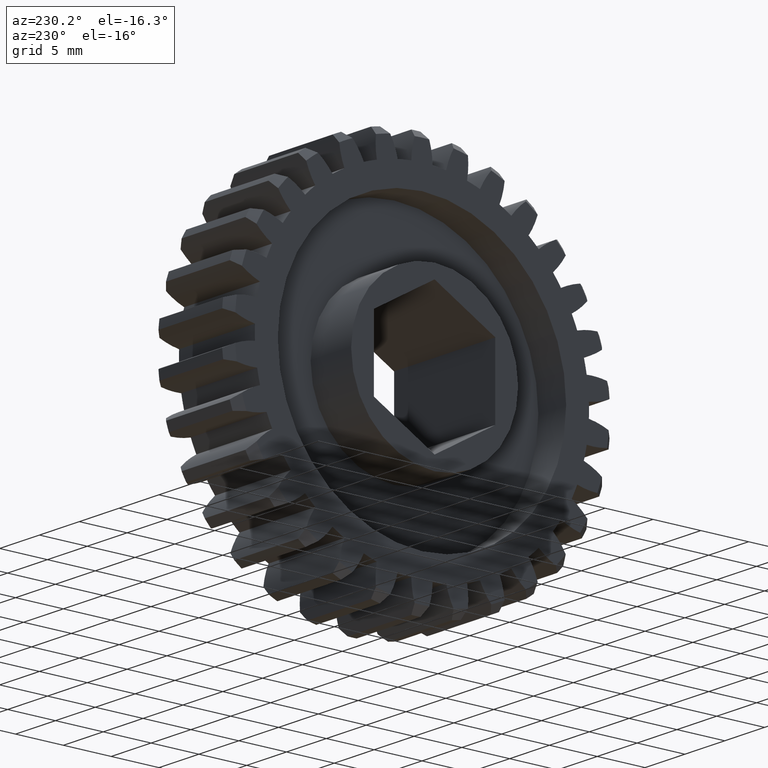
[diagram: clean part render]
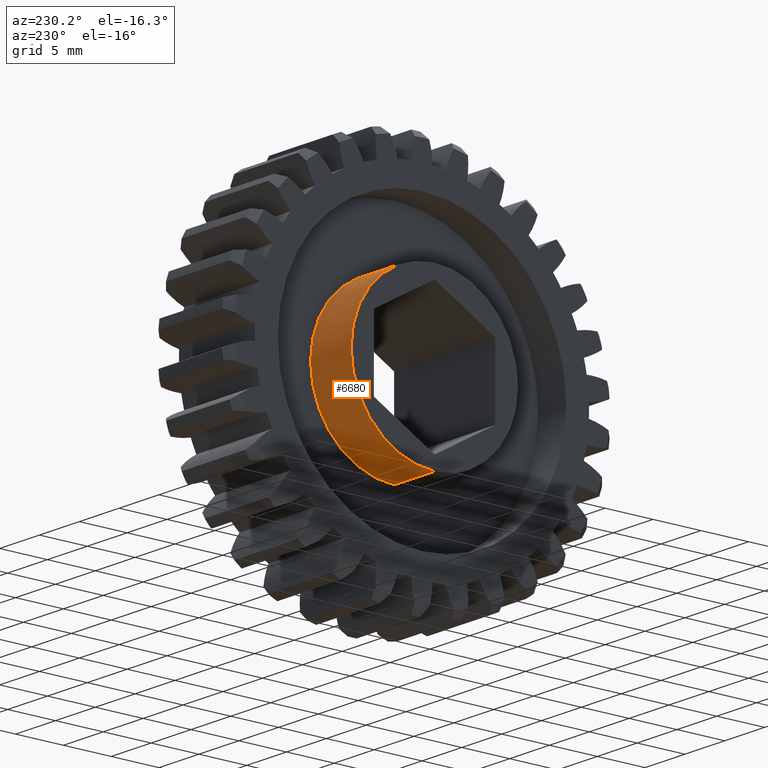
[diagram: same view with one face highlighted and labeled with its STEP entity id]
A machine part, auxiliary view. The second image highlights one B-rep face of the part: STEP entity #6680.
In plain terms, the highlighted cylindrical surface (partial cylindrical patch) has radius 8.7312 mm, axis along (1, 0, 0).
Its self-contained STEP definition (entity closure, byte-faithful):
#324 = CIRCLE ( 'NONE', #2418, 0.3437500000000000000 ) ;
#367 = DIRECTION ( 'NONE',  ( 1.000000000000000000, 0.0000000000000000000, 0.0000000000000000000 ) ) ;
#398 = CARTESIAN_POINT ( 'NONE',  ( -0.06250000000000000000, 0.0000000000000000000, -0.3437500000000000000 ) ) ;
#559 = ORIENTED_EDGE ( 'NONE', *, *, #3916, .F. ) ;
#666 = VERTEX_POINT ( 'NONE', #2538 ) ;
#830 = CARTESIAN_POINT ( 'NONE',  ( 0.1375000000000000111, 4.209723372069026264E-17, 0.3437500000000000000 ) ) ;
#910 = DIRECTION ( 'NONE',  ( 1.000000000000000000, -0.0000000000000000000, 0.0000000000000000000 ) ) ;
#912 = FACE_OUTER_BOUND ( 'NONE', #1091, .T. ) ;
#1091 = EDGE_LOOP ( 'NONE', ( #3772, #3389, #559, #1329 ) ) ;
#1321 = VERTEX_POINT ( 'NONE', #830 ) ;
#1329 = ORIENTED_EDGE ( 'NONE', *, *, #5505, .F. ) ;
#1372 = CARTESIAN_POINT ( 'NONE',  ( -0.06250000000000000000, 4.209723372069026264E-17, 0.3437500000000000000 ) ) ;
#1595 = AXIS2_PLACEMENT_3D ( 'NONE', #5855, #910, #3107 ) ;
#2000 = DIRECTION ( 'NONE',  ( 1.000000000000000000, -0.0000000000000000000, 0.0000000000000000000 ) ) ;
#2418 = AXIS2_PLACEMENT_3D ( 'NONE', #6945, #2000, #4197 ) ;
#2538 = CARTESIAN_POINT ( 'NONE',  ( -0.06250000000000000000, 4.209723372069026264E-17, 0.3437500000000000000 ) ) ;
#2576 = DIRECTION ( 'NONE',  ( 0.0000000000000000000, 0.0000000000000000000, -1.000000000000000000 ) ) ;
#2605 = DIRECTION ( 'NONE',  ( 1.000000000000000000, 0.0000000000000000000, 0.0000000000000000000 ) ) ;
#2613 = EDGE_CURVE ( 'NONE', #3969, #666, #324, .T. ) ;
#3107 = DIRECTION ( 'NONE',  ( 0.0000000000000000000, 0.0000000000000000000, -1.000000000000000000 ) ) ;
#3109 = CYLINDRICAL_SURFACE ( 'NONE', #4221, 0.3437500000000000000 ) ;
#3389 = ORIENTED_EDGE ( 'NONE', *, *, #5815, .T. ) ;
#3408 = VECTOR ( 'NONE', #3581, 39.37007874015748143 ) ;
#3581 = DIRECTION ( 'NONE',  ( 1.000000000000000000, 0.0000000000000000000, 0.0000000000000000000 ) ) ;
#3772 = ORIENTED_EDGE ( 'NONE', *, *, #2613, .T. ) ;
#3916 = EDGE_CURVE ( 'NONE', #7037, #1321, #4703, .T. ) ;
#3969 = VERTEX_POINT ( 'NONE', #5959 ) ;
#4197 = DIRECTION ( 'NONE',  ( 0.0000000000000000000, 0.0000000000000000000, -1.000000000000000000 ) ) ;
#4221 = AXIS2_PLACEMENT_3D ( 'NONE', #5324, #367, #2576 ) ;
#4319 = VECTOR ( 'NONE', #2605, 39.37007874015748143 ) ;
#4703 = CIRCLE ( 'NONE', #1595, 0.3437500000000000000 ) ;
#5324 = CARTESIAN_POINT ( 'NONE',  ( -0.06250000000000000000, 0.0000000000000000000, 0.0000000000000000000 ) ) ;
#5348 = LINE ( 'NONE', #398, #4319 ) ;
#5505 = EDGE_CURVE ( 'NONE', #3969, #7037, #5348, .T. ) ;
#5815 = EDGE_CURVE ( 'NONE', #666, #1321, #6330, .T. ) ;
#5855 = CARTESIAN_POINT ( 'NONE',  ( 0.1375000000000000111, 0.0000000000000000000, 0.0000000000000000000 ) ) ;
#5959 = CARTESIAN_POINT ( 'NONE',  ( -0.06250000000000000000, 0.0000000000000000000, -0.3437500000000000000 ) ) ;
#6330 = LINE ( 'NONE', #1372, #3408 ) ;
#6680 = ADVANCED_FACE ( 'NONE', ( #912 ), #3109, .T. ) ;
#6871 = CARTESIAN_POINT ( 'NONE',  ( 0.1375000000000000111, 0.0000000000000000000, -0.3437500000000000000 ) ) ;
#6945 = CARTESIAN_POINT ( 'NONE',  ( -0.06250000000000000000, 0.0000000000000000000, 0.0000000000000000000 ) ) ;
#7037 = VERTEX_POINT ( 'NONE', #6871 ) ;